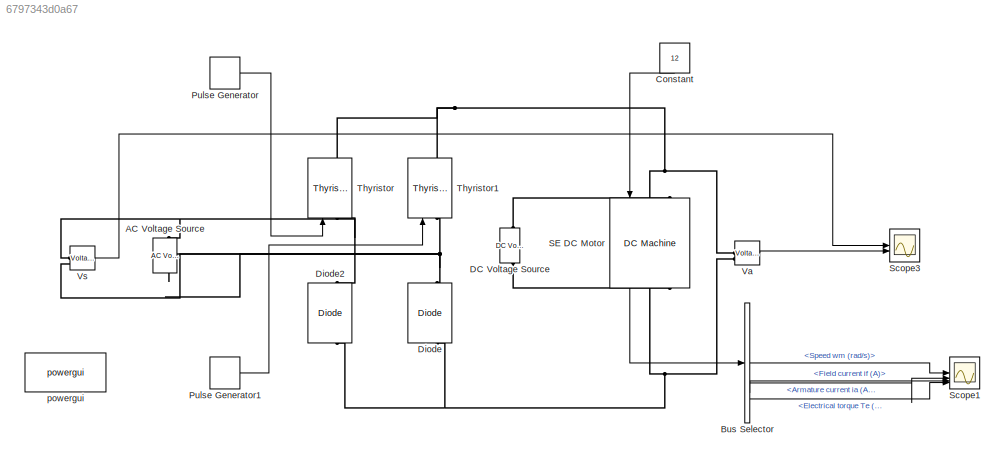
MODEL slx_6797343d0a67
KIND model
CONFIG AbsTol = auto
CONFIG EnableMultiTasking = off
CONFIG FixedStep = auto
CONFIG MaxStep = auto
CONFIG MinStep = auto
CONFIG RelTol = 1e-3
CONFIG SampleTimeConstraint = Unconstrained
CONFIG SolverName = VariableStepAuto
CONFIG StartTime = 0.0
CONFIG StopTime = 0.1
BLOCK [Reference] AC Voltage Source  REF=spsACVoltageSourceLib/AC Voltage Source
  LibrarySourceBlock = sps_lib/Sources/AC Voltage Source
  SourceBlock = spsACVoltageSourceLib/AC Voltage Source
  SourceType = AC Voltage Source
BLOCK [BusSelector] Bus Selector
  OutputSignals = Speed wm (rad/s),Armature current ia (A),Field current if (A),Electrical torque Te (n m)
BLOCK [Constant] Constant
  NameLocation = left
  Value = 12
BLOCK [Reference] DC Voltage Source  REF=spsDCVoltageSourceLib/DC Voltage Source
  LibrarySourceBlock = sps_lib/Sources/DC Voltage Source
  SourceBlock = spsDCVoltageSourceLib/DC Voltage Source
  SourceType = DC Voltage Source
BLOCK [Reference] Diode  REF=spsDiodeLib/Diode
  LibrarySourceBlock = sps_lib/Power Electronics/Diode
  NameLocation = right
  SourceBlock = spsDiodeLib/Diode
  SourceType = Diode
BLOCK [Reference] Diode2  REF=spsDiodeLib/Diode
  LibrarySourceBlock = sps_lib/Power Electronics/Diode
  NameLocation = right
  SourceBlock = spsDiodeLib/Diode
  SourceType = Diode
BLOCK [DiscretePulseGenerator] Pulse Generator
  Amplitude = 5
  Period = 1/50
  PhaseDelay = (30/360)*0.02
  PulseType = Time based
  PulseWidth = 5
BLOCK [DiscretePulseGenerator] Pulse Generator1
  Amplitude = 5
  Period = 1/50
  PhaseDelay = (210/360)*0.02
  PulseType = Time based
  PulseWidth = 5
BLOCK [Reference] SE DC Motor  REF=spsDCMachineLib/DC Machine
  LibrarySourceBlock = sps_lib/Electrical Machines/DC Machine
  NameLocation = left
  SourceBlock = spsDCMachineLib/DC Machine
  SourceType = DC machine
BLOCK [Scope] Scope1
  ActiveDisplayYMaximum = 4.4806971221211063
  ActiveDisplayYMinimum = 0.52196444681309073
  Floating = off
  GraphicalSettings = {"AxesScalingProperties":{"AlignXAxis":"Center","AlignYAxis":"Center","AutoScaleXAxisLimits":false,"AxesScaling":"Manual","AxesScalingNumUpdates":10,"ExpandOnly":true,"ScaleAxesLimitsAtStop":false,"XAxisDataRange":100,"YAxisDataRange":80},"DisplayProperties":{"ColorOrder":["auto","auto","auto","auto","auto","auto","auto","auto","auto","auto","auto","auto","auto","auto","auto","auto","auto","auto",...<+3450ch>
  LayoutDimensionsString = [2,2]
  MultipleDisplayCache = [{"MaxYLimMag":4.4806971221211063,"MaxYLimReal":4.4806971221211063,"MinYLimMag":0.52196444681309073,"MinYLimReal":0.52196444681309073,"PlotAsMagnitudePhase":false,"ShowGrid":true,"ShowLegend":false,"Title":"%<SignalLabel>","YLabel":""},{"MaxYLimMag":61.065434226381065,"MaxYLimReal":505.10931025435275,"MinYLimMag":0,"MinYLimReal":-465.66162176140307,"PlotAsMagnitudePhase":false,"ShowGrid":true,"Sho...<+503ch>
  NumInputPorts = 4
  ScopeFrameLocation = window
  WasSavedAsWebScope = on
  WindowPosition = [1.000000,49.000000,1536.000000,793.000000,]
BLOCK [Scope] Scope3
  ActiveDisplayYMaximum = 297.56178396381131
  ActiveDisplayYMinimum = -279.84992829527789
  DataLoggingVariableName = ScopeData3
  Floating = off
  GraphicalSettings = {"Style":{"BackgroundColor":[0.12941176470588237,0.12941176470588237,0.12941176470588237],"AxesColor":[0.07058823529411765,0.07058823529411765,0.07058823529411765],"LabelsColor":[0.8509803921568627,0.8509803921568627,0.8509803921568627],"PreserveColors":false,"Visible":[true,true],"LineStyle":["-","-"],"LineWidth":[1.5,1.5],"BarWidth":[0.9,0.9],"LineColor":["auto","auto"],"LineFaceAlpha":[1,1],"Li...<+2602ch>
  LayoutDimensionsString = [2,1]
  MultipleDisplayCache = [{"MaxYLimMag":274.96429253005522,"MaxYLimReal":297.56178396381131,"MinYLimMag":0,"MinYLimReal":-279.84992829527789,"PlotAsMagnitudePhase":false,"ShowGrid":true,"ShowLegend":false,"Title":"%<SignalLabel>","YLabel":""},{"MaxYLimMag":245.73811500931691,"MaxYLimReal":241.43205134535293,"MinYLimMag":0,"MinYLimReal":-20.53749784775448,"PlotAsMagnitudePhase":false,"ShowGrid":true,"ShowLegend":false,"Tit...<+34ch>
  NumInputPorts = 2
  ScopeFrameLocation = window
  WasSavedAsWebScope = on
  WindowPosition = [1.000000,49.000000,1536.000000,889.000000,]
BLOCK [Reference] Thyristor  REF=spsThyristorLib/Thyristor
  LibrarySourceBlock = sps_lib/Power Electronics/Thyristor
  NameLocation = right
  SourceBlock = spsThyristorLib/Thyristor
  SourceType = Thyristor
BLOCK [Reference] Thyristor1  REF=spsThyristorLib/Thyristor
  LibrarySourceBlock = sps_lib/Power Electronics/Thyristor
  NameLocation = right
  SourceBlock = spsThyristorLib/Thyristor
  SourceType = Thyristor
BLOCK [Reference] Va  REF=spsVoltageMeasurementLib/Voltage Measurement
  LibrarySourceBlock = sps_lib/Sensors and Measurements/Voltage Measurement
  NameLocation = top
  SourceBlock = spsVoltageMeasurementLib/Voltage Measurement
  SourceType = Voltage Measurement
  UserDataPersistent = on
BLOCK [Reference] Vs  REF=spsVoltageMeasurementLib/Voltage Measurement
  LibrarySourceBlock = sps_lib/Sensors and Measurements/Voltage Measurement
  NameLocation = top
  SourceBlock = spsVoltageMeasurementLib/Voltage Measurement
  SourceType = Voltage Measurement
  UserDataPersistent = on
BLOCK [Reference] powergui  REF=sps_lib/powergui
  LibrarySourceBlock = sps_lib/powergui
  Priority = 1
  SourceBlock = sps_lib/powergui
  SourceType = PSB option menu block
LINE Bus Selector:1 -> Scope1:1
LINE Bus Selector:2 -> Scope1:2
LINE Bus Selector:3 -> Scope1:3
LINE Bus Selector:4 -> Scope1:4
LINE Constant:1 -> SE DC Motor:1
LINE Pulse Generator1:1 -> Thyristor1:1
LINE Pulse Generator:1 -> Thyristor:1
LINE SE DC Motor:1 -> Bus Selector:1
LINE Va:1 -> Scope3:2
LINE Vs:1 -> Scope3:1
PNET net1: AC Voltage Source:LConn1 -- Diode:RConn1 -- Thyristor1:LConn1 -- Vs:LConn2
PNET net2: AC Voltage Source:RConn1 -- Diode2:RConn1 -- Thyristor:LConn1 -- Vs:LConn1
PLINE DC Voltage Source:LConn1 -- SE DC Motor:RConn2
PLINE DC Voltage Source:RConn1 -- SE DC Motor:LConn2
PNET net3: Diode2:LConn1 -- Diode:LConn1 -- SE DC Motor:RConn1 -- Va:LConn2
PNET net4: SE DC Motor:LConn1 -- Thyristor1:RConn1 -- Thyristor:RConn1 -- Va:LConn1
note: PNET lines group multi-terminal physical nets as a canonical sorted terminal list (undirected conserving connections); 2-terminal nets keep the pairwise PLINE form
